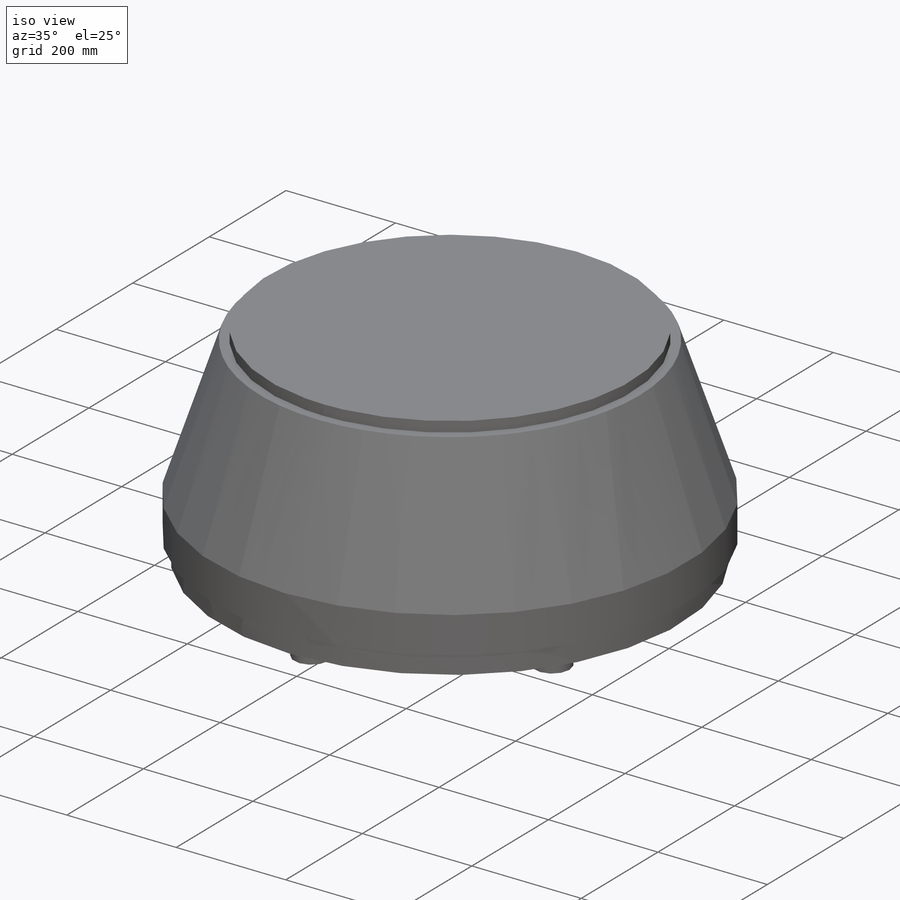
[diagram: iso view]
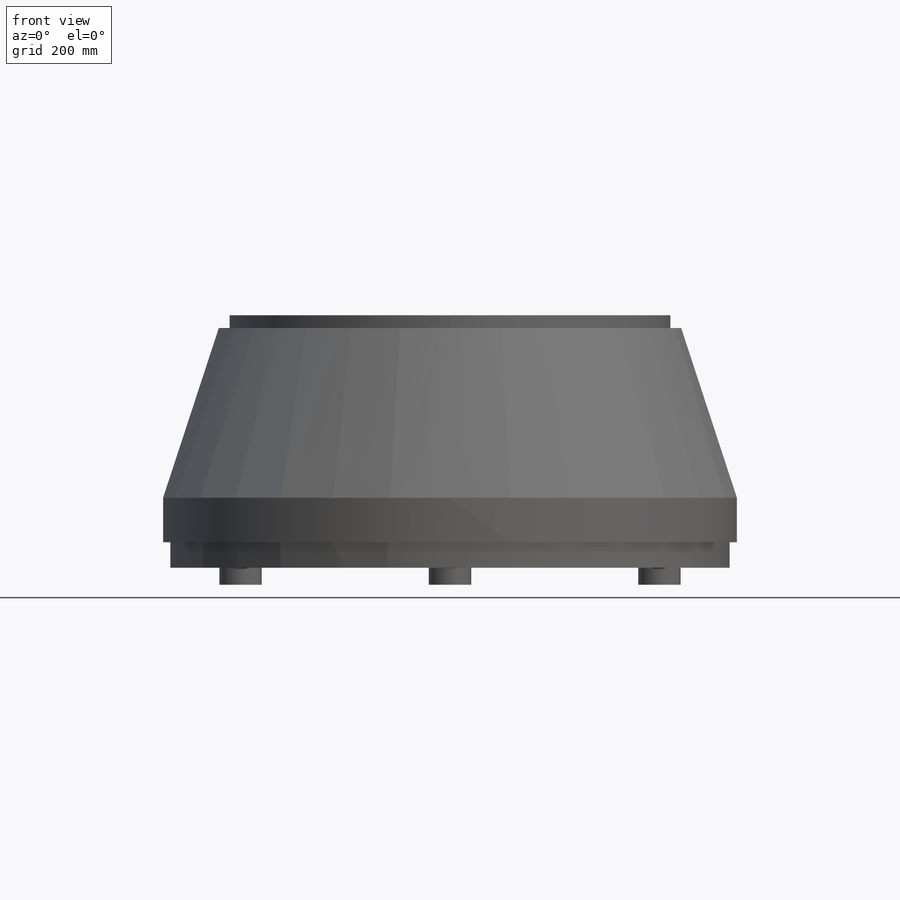
[diagram: front view]
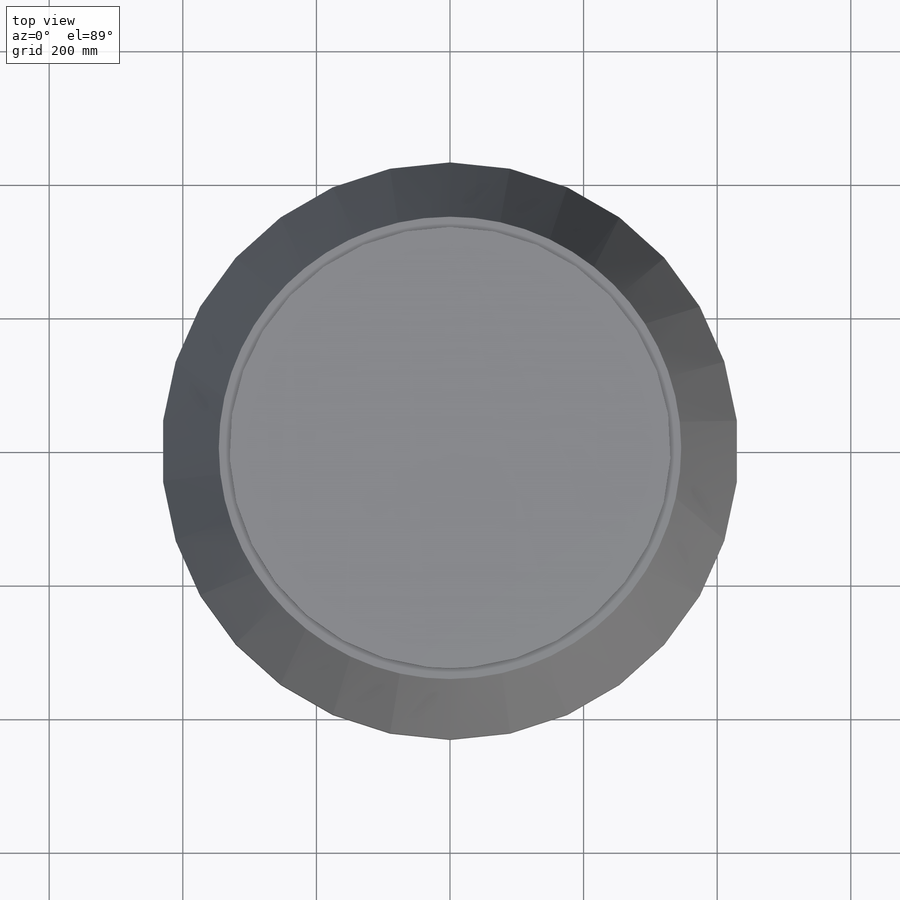
[diagram: top view]
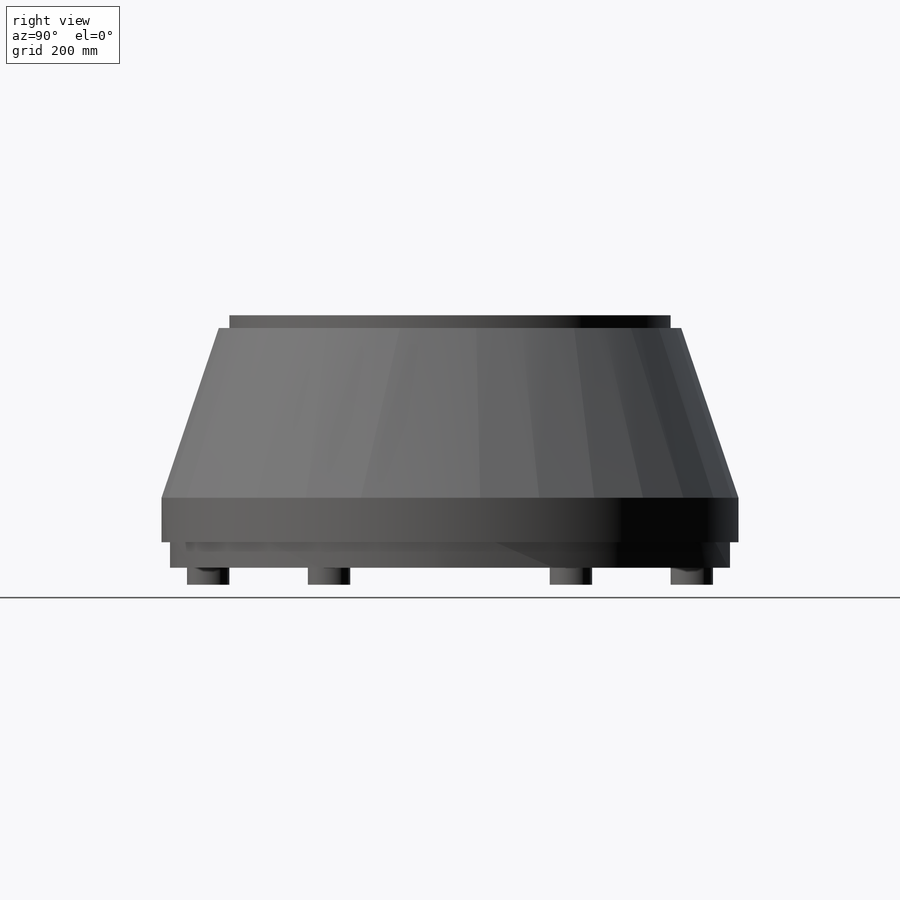
[diagram: right view]
SOLIDWORKS PART (.sldprt)
format: sldprt  version: not decoded by parser v0  size: 408,576 bytes
history: native  units: mm
features: sketch x6, extrude x4, material x1, plane x1, pattern_circular x1 (+12 scaffold rows collapsed)
feature tree (25):
  scaffold x12  (default folders/planes/origin — collapsed)
  material  "Material <not specified>"
  sketch  "Sketch1"  dims[D1=660.4mm]
  extrude  "Extrude1"  Depth=19.05mm
  plane  "Plane1"  Offset=254mm
  sketch  "Sketch2"  dims[D1=692.15mm]
  sketch  "Sketch3"  dims[D1=863.6mm]
  sketch  "Sketch4"  dims[D1=863.6mm]
  extrude  "Extrude2"  Depth=66.675mm
  sketch  "Sketch5"  dims[D1=838.2mm]
  extrude  "Extrude3"  Depth=38.1mm
  sketch  "Sketch6"  dims[D1=63.5mm D2=361.95mm]
  extrude  "Extrude4"  Depth=25.4mm
  pattern_circular  "CirPattern1"  Count=6 Angle=360deg
decode coverage: 11 of 11 modeling features carry decoded parameters
note: suppression state not decoded; provenance and decode notes live in map.json
